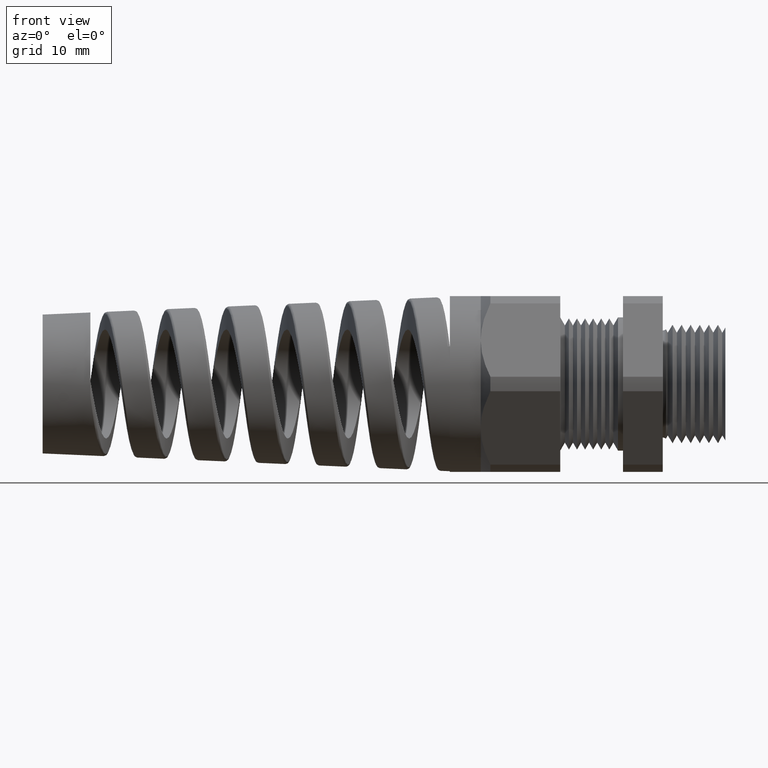
[diagram: clean part render]
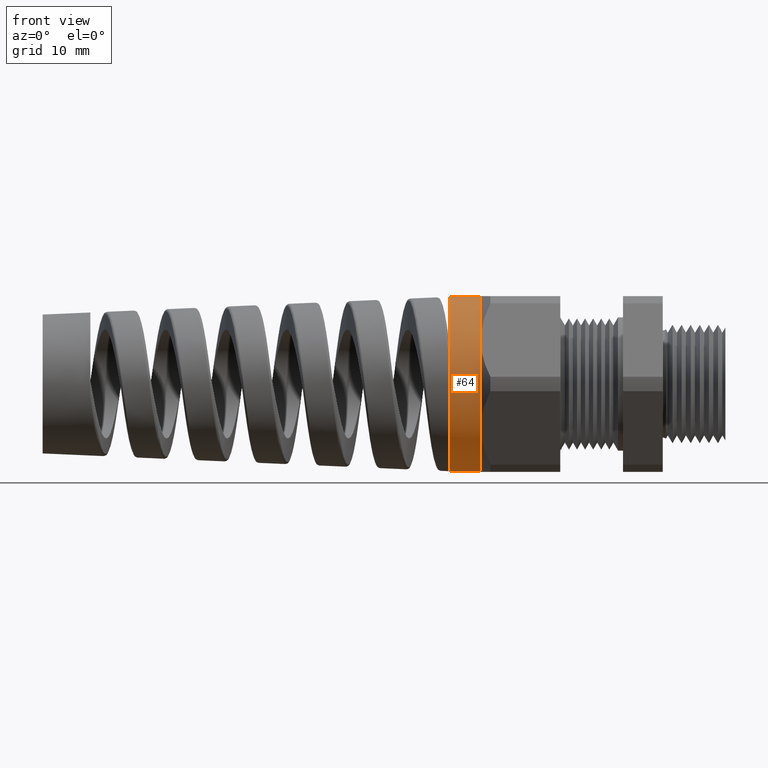
[diagram: same view with one face highlighted and labeled with its STEP entity id]
A machine part, front view. The second image highlights one B-rep face of the part: STEP entity #64.
In plain terms, the highlighted cylindrical surface (partial cylindrical patch) has radius 11.049 mm, axis along (1, 0, 0).
Its self-contained STEP definition (entity closure, byte-faithful):
#42 = ORIENTED_EDGE ( 'NONE', *, *, #386, .F. ) ;
#43 = ORIENTED_EDGE ( 'NONE', *, *, #44, .F. ) ;
#44 = EDGE_CURVE ( 'NONE', #384, #383, #1061, .T. ) ;
#45 = ORIENTED_EDGE ( 'NONE', *, *, #289, .T. ) ;
#46 = ORIENTED_EDGE ( 'NONE', *, *, #47, .F. ) ;
#47 = EDGE_CURVE ( 'NONE', #919, #287, #1119, .T. ) ;
#48 = ORIENTED_EDGE ( 'NONE', *, *, #49, .F. ) ;
#49 = EDGE_CURVE ( 'NONE', #923, #919, #1113, .T. ) ;
#50 = ORIENTED_EDGE ( 'NONE', *, *, #51, .F. ) ;
#51 = EDGE_CURVE ( 'NONE', #387, #923, #1106, .T. ) ;
#64 = ADVANCED_FACE ( 'NONE', ( #1150 ), #1145, .T. ) ;
#65 = EDGE_LOOP ( 'NONE', ( #42, #43, #45, #46, #48, #50 ) ) ;
#287 = VERTEX_POINT ( 'NONE', #1839 ) ;
#289 = EDGE_CURVE ( 'NONE', #384, #287, #1913, .T. ) ;
#383 = VERTEX_POINT ( 'NONE', #2709 ) ;
#384 = VERTEX_POINT ( 'NONE', #2708 ) ;
#386 = EDGE_CURVE ( 'NONE', #383, #387, #2707, .T. ) ;
#387 = VERTEX_POINT ( 'NONE', #2703 ) ;
#919 = VERTEX_POINT ( 'NONE', #4704 ) ;
#923 = VERTEX_POINT ( 'NONE', #4752 ) ;
#1061 = CIRCLE ( 'NONE', #1124, 0.4350000000000000000 ) ;
#1102 = DIRECTION ( 'NONE',  ( 0.0000000000000000000, 0.0000000000000000000, -1.000000000000000000 ) ) ;
#1103 = DIRECTION ( 'NONE',  ( 1.000000000000000000, 0.0000000000000000000, 0.0000000000000000000 ) ) ;
#1104 = CARTESIAN_POINT ( 'NONE',  ( -1.211259842519684800, 0.0000000000000000000, 0.0000000000000000000 ) ) ;
#1105 = AXIS2_PLACEMENT_3D ( 'NONE', #1104, #1103, #1102 ) ;
#1106 = CIRCLE ( 'NONE', #1105, 0.4350000000000000000 ) ;
#1107 = DIRECTION ( 'NONE',  ( 0.0000000000000000000, 0.0000000000000000000, -1.000000000000000000 ) ) ;
#1109 = DIRECTION ( 'NONE',  ( 1.000000000000000000, 0.0000000000000000000, 0.0000000000000000000 ) ) ;
#1110 = CARTESIAN_POINT ( 'NONE',  ( -1.211259842519684800, 0.0000000000000000000, 0.0000000000000000000 ) ) ;
#1112 = AXIS2_PLACEMENT_3D ( 'NONE', #1110, #1109, #1107 ) ;
#1113 = CIRCLE ( 'NONE', #1112, 0.4350000000000000000 ) ;
#1115 = DIRECTION ( 'NONE',  ( 0.0000000000000000000, 0.0000000000000000000, -1.000000000000000000 ) ) ;
#1116 = DIRECTION ( 'NONE',  ( 1.000000000000000000, 0.0000000000000000000, 0.0000000000000000000 ) ) ;
#1117 = CARTESIAN_POINT ( 'NONE',  ( -1.211259842519684800, 0.0000000000000000000, 0.0000000000000000000 ) ) ;
#1118 = AXIS2_PLACEMENT_3D ( 'NONE', #1117, #1116, #1115 ) ;
#1119 = CIRCLE ( 'NONE', #1118, 0.4350000000000000000 ) ;
#1120 = DIRECTION ( 'NONE',  ( 0.0000000000000000000, 0.0000000000000000000, 1.000000000000000000 ) ) ;
#1122 = DIRECTION ( 'NONE',  ( -1.000000000000000000, 0.0000000000000000000, 0.0000000000000000000 ) ) ;
#1123 = CARTESIAN_POINT ( 'NONE',  ( -1.363917059664837300, 0.0000000000000000000, 0.0000000000000000000 ) ) ;
#1124 = AXIS2_PLACEMENT_3D ( 'NONE', #1123, #1122, #1120 ) ;
#1144 = AXIS2_PLACEMENT_3D ( 'NONE', #1148, #11100, #11106 ) ;
#1145 = CYLINDRICAL_SURFACE ( 'NONE', #1144, 0.4350000000000000000 ) ;
#1148 = CARTESIAN_POINT ( 'NONE',  ( 0.0000000000000000000, 0.0000000000000000000, 0.0000000000000000000 ) ) ;
#1150 = FACE_OUTER_BOUND ( 'NONE', #65, .T. ) ;
#1839 = CARTESIAN_POINT ( 'NONE',  ( -1.211259842519684800, 0.0000000000000000000, -0.4350000000000000000 ) ) ;
#1910 = DIRECTION ( 'NONE',  ( 1.000000000000000000, 0.0000000000000000000, 0.0000000000000000000 ) ) ;
#1911 = VECTOR ( 'NONE', #1910, 39.37007874015748100 ) ;
#1912 = CARTESIAN_POINT ( 'NONE',  ( 0.0000000000000000000, 0.0000000000000000000, -0.4350000000000000000 ) ) ;
#1913 = LINE ( 'NONE', #1912, #1911 ) ;
#2703 = CARTESIAN_POINT ( 'NONE',  ( -1.211259842519684800, 0.0000000000000000000, 0.4350000000000000000 ) ) ;
#2704 = DIRECTION ( 'NONE',  ( 1.000000000000000000, 0.0000000000000000000, 0.0000000000000000000 ) ) ;
#2705 = VECTOR ( 'NONE', #2704, 39.37007874015748100 ) ;
#2706 = CARTESIAN_POINT ( 'NONE',  ( 0.0000000000000000000, 5.327213576290986400E-017, 0.4350000000000000000 ) ) ;
#2707 = LINE ( 'NONE', #2706, #2705 ) ;
#2708 = CARTESIAN_POINT ( 'NONE',  ( -1.363917059664837300, 0.0000000000000000000, -0.4350000000000000000 ) ) ;
#2709 = CARTESIAN_POINT ( 'NONE',  ( -1.363917059664837300, 5.327213576290986400E-017, 0.4350000000000000000 ) ) ;
#4704 = CARTESIAN_POINT ( 'NONE',  ( -1.211259842519684800, -0.3767210506462308500, -0.2175000000000001100 ) ) ;
#4752 = CARTESIAN_POINT ( 'NONE',  ( -1.211259842519684800, -0.3767210506462311300, 0.2175000000000000000 ) ) ;
#11100 = DIRECTION ( 'NONE',  ( 1.000000000000000000, 0.0000000000000000000, 0.0000000000000000000 ) ) ;
#11106 = DIRECTION ( 'NONE',  ( 0.0000000000000000000, 0.0000000000000000000, -1.000000000000000000 ) ) ;